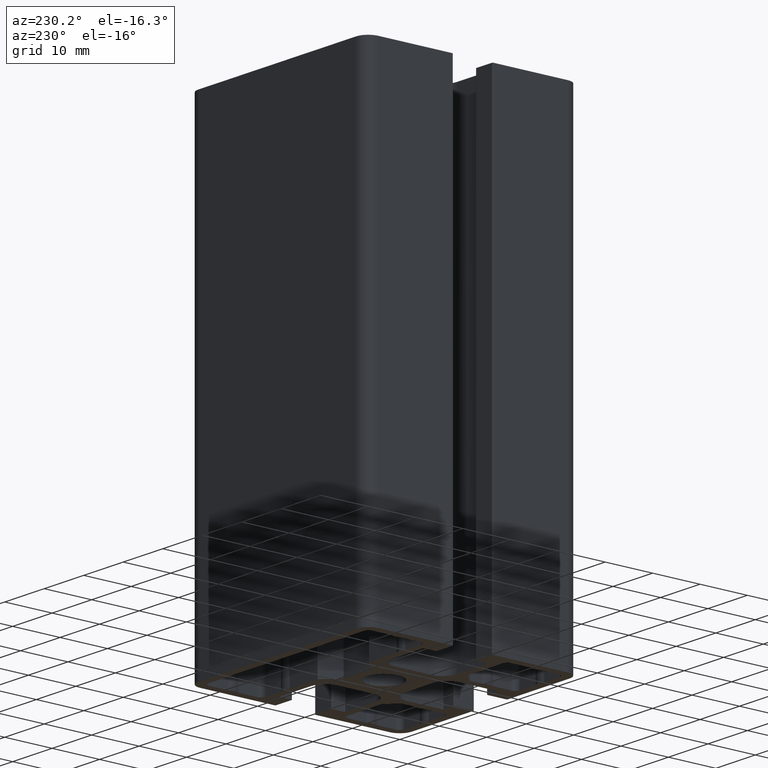
[diagram: clean part render]
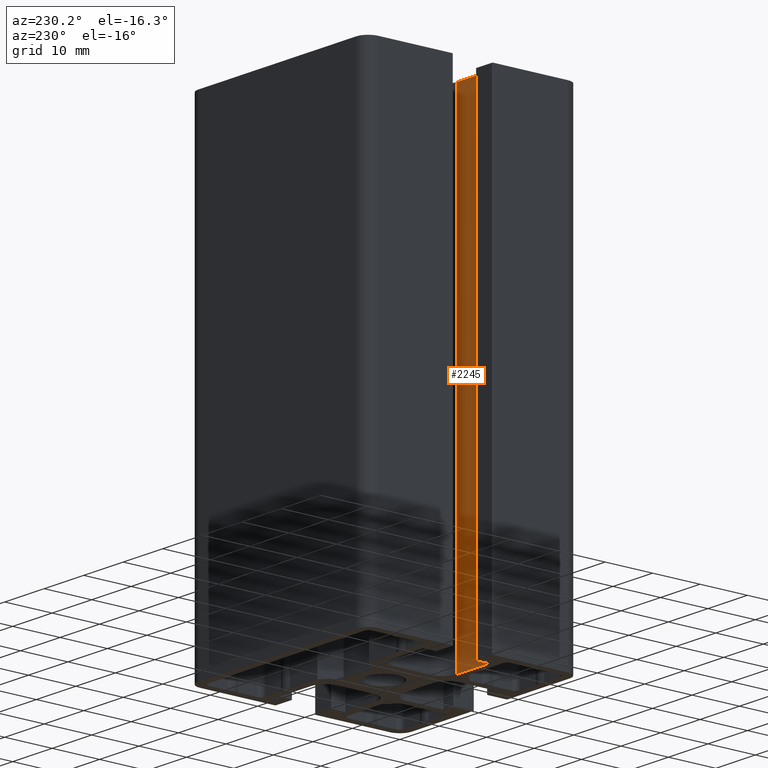
[diagram: same view with one face highlighted and labeled with its STEP entity id]
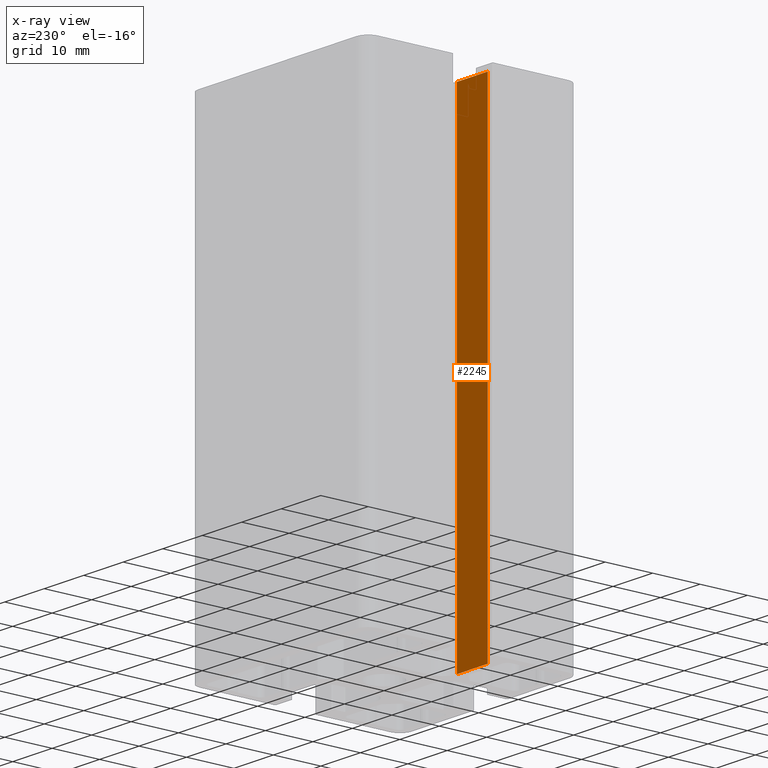
[diagram: x-ray of the same camera — body ghosted, the highlighted face saturated]
A machine part, auxiliary view. The second image highlights one B-rep face of the part: STEP entity #2245.
The next image is the same camera in x-ray: the body ghosted, the highlighted face saturated — about 0% of this face is hidden behind the body in this view.
In plain terms, the highlighted planar face has unit normal (0, -1, 0).
Its self-contained STEP definition (entity closure, byte-faithful):
#240=FACE_OUTER_BOUND('',#355,.T.);
#355=EDGE_LOOP('',(#1678,#1679,#1680,#1681));
#543=LINE('',#3547,#775);
#544=LINE('',#3550,#776);
#545=LINE('',#3552,#777);
#546=LINE('',#3553,#778);
#775=VECTOR('',#2863,100.);
#776=VECTOR('',#2866,7.8);
#777=VECTOR('',#2867,7.8);
#778=VECTOR('',#2868,100.);
#999=VERTEX_POINT('',#3541);
#1001=VERTEX_POINT('',#3545);
#1002=VERTEX_POINT('',#3549);
#1003=VERTEX_POINT('',#3551);
#1283=EDGE_CURVE('',#1001,#999,#543,.T.);
#1284=EDGE_CURVE('',#999,#1002,#544,.T.);
#1285=EDGE_CURVE('',#1003,#1001,#545,.T.);
#1286=EDGE_CURVE('',#1003,#1002,#546,.T.);
#1678=ORIENTED_EDGE('',*,*,#1284,.F.);
#1679=ORIENTED_EDGE('',*,*,#1283,.F.);
#1680=ORIENTED_EDGE('',*,*,#1285,.F.);
#1681=ORIENTED_EDGE('',*,*,#1286,.T.);
#2158=PLANE('',#2412);
#2245=ADVANCED_FACE('',(#240),#2158,.F.);
#2412=AXIS2_PLACEMENT_3D('',#3548,#2864,#2865);
#2863=DIRECTION('',(0.,0.,1.));
#2864=DIRECTION('center_axis',(1.42336285208353E-16,-1.,0.));
#2865=DIRECTION('ref_axis',(1.,1.77635683940025E-16,0.));
#2866=DIRECTION('',(-1.,-1.42336285208353E-16,0.));
#2867=DIRECTION('',(1.,1.42336285208353E-16,0.));
#2868=DIRECTION('',(0.,0.,1.));
#3541=CARTESIAN_POINT('',(-10.2,-6.9,100.));
#3545=CARTESIAN_POINT('',(-10.2,-6.9,0.));
#3547=CARTESIAN_POINT('',(-10.2,-6.9,0.));
#3548=CARTESIAN_POINT('Origin',(-18.,-6.9,0.));
#3549=CARTESIAN_POINT('',(-18.,-6.9,100.));
#3550=CARTESIAN_POINT('',(-9.,-6.9,100.));
#3551=CARTESIAN_POINT('',(-18.,-6.9,0.));
#3552=CARTESIAN_POINT('',(-9.,-6.9,0.));
#3553=CARTESIAN_POINT('',(-18.,-6.9,0.));